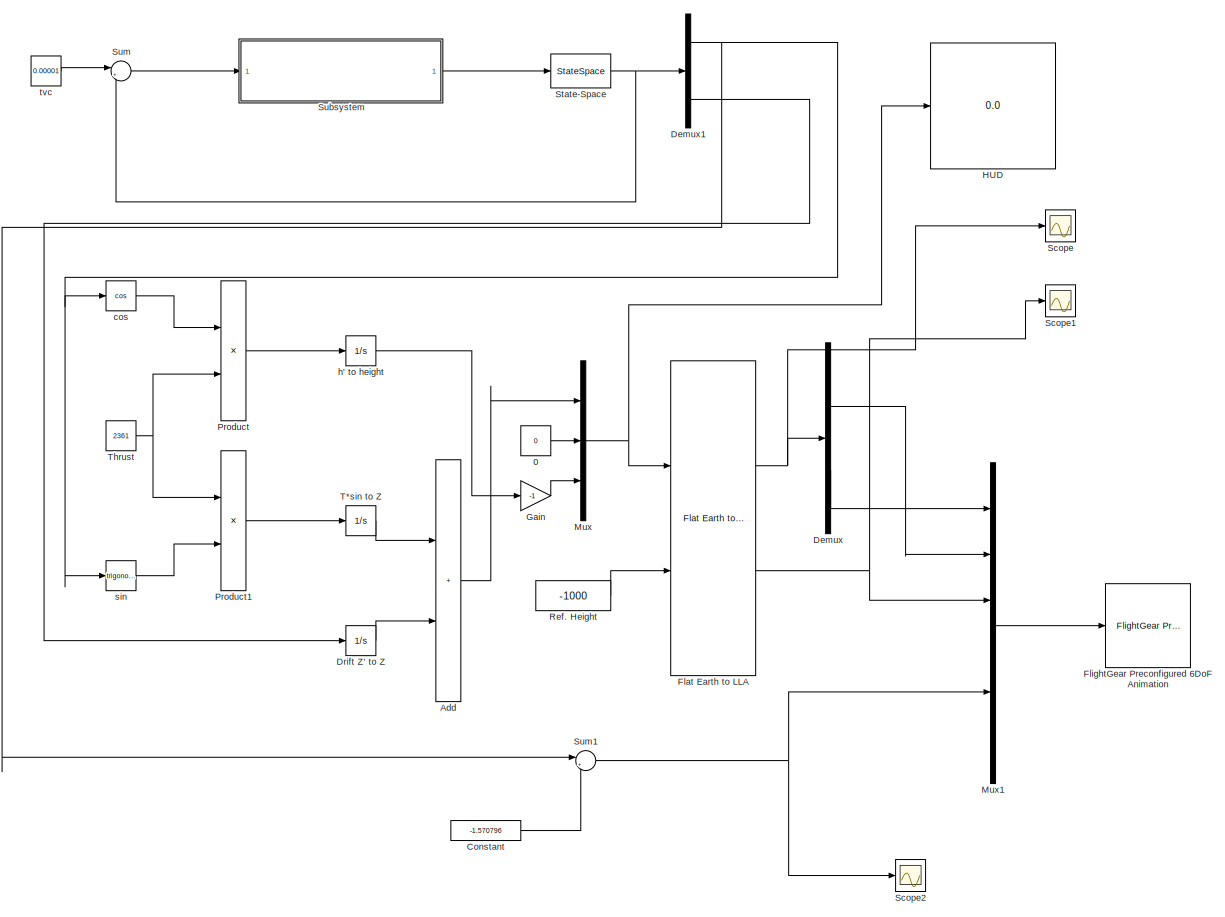
[diagram: root canvas - part 1/1, most of the canvas]
MODEL slx_27a8a4d96ae3
KIND model
CONFIG AbsTol = auto
CONFIG EnableMultiTasking = off
CONFIG FixedStep = auto
CONFIG MaxStep = auto
CONFIG MinStep = auto
CONFIG RelTol = 1e-3
CONFIG SampleTimeConstraint = Unconstrained
CONFIG SolverName = VariableStepAuto
CONFIG StartTime = 0.0
CONFIG StopTime = 100
BLOCK [Constant] 0
  Value = 0
BLOCK [Sum] Add
  IconShape = rectangular
  Ports = [2, 1]
BLOCK [Constant] Constant
  Value = -1.570796
BLOCK [Demux] Demux
  Outputs = 2
  Ports = [1, 2]
BLOCK [Demux] Demux1
  Outputs = 3
  Ports = [1, 3]
BLOCK [Integrator] Drift Z' to Z
  Ports = [1, 1]
BLOCK [Reference] Flat Earth to LLA  REF=aerolibtransform2/Flat Earth to LLA
  Ports = [2, 2]
  SourceBlock = aerolibtransform2/Flat Earth to LLA
  SourceProductBaseCode = AE
  SourceType = Flat Earth to LLA
BLOCK [Reference] FlightGear Preconfigured 6DoF Animation  REF=aerolibfltsims/FlightGear
Preconfigured
6DoF Animation
  Ports = [1]
  SourceBlock = aerolibfltsims/FlightGear\nPreconfigured\n6DoF Animation
  SourceProductBaseCode = AE
  SourceType = FlightGearQuick6DoFAnimation
BLOCK [Gain] Gain
  Gain = -1
BLOCK [Display] HUD
  Decimation = 1
  Ports = [1]
BLOCK [Mux] Mux
  DisplayOption = bar
  Inputs = 3
  Ports = [3, 1]
BLOCK [Mux] Mux1
  DisplayOption = bar
  Inputs = 6
  Ports = [6, 1]
BLOCK [Product] Product
  Ports = [2, 1]
BLOCK [Product] Product1
  Ports = [2, 1]
BLOCK [Constant] Ref. Height
  Value = -1000
BLOCK [Scope] Scope
  Floating = off
  NumInputPorts = 1
  Ports = [1]
  ScopeSpecificationString = Simulink.scopes.TimeScopeBlockCfg('CurrentConfiguration', extmgr.ConfigurationSet(extmgr.Configuration('Core','General UI',true),extmgr.Configuration('Core','Source UI',true),extmgr.Configuration('Sources','WiredSimulink',true),extmgr.Configuration('Visuals','Time Domain',true,'SerializedDisplays',{struct('MinYLimReal','-1.25','MaxYLimReal','11.25','YLabelReal','','MinYLimMag','0.00000','MaxYLimMa...<+1380ch>
BLOCK [Scope] Scope1
  Floating = off
  NumInputPorts = 1
  Ports = [1]
  ScopeSpecificationString = Simulink.scopes.TimeScopeBlockCfg('CurrentConfiguration', extmgr.ConfigurationSet(extmgr.Configuration('Core','General UI',true),extmgr.Configuration('Core','Source UI',true),extmgr.Configuration('Sources','WiredSimulink',true,'DataLoggingVariableName','ScopeData1'),extmgr.Configuration('Visuals','Time Domain',true,'SerializedDisplays',{struct('MinYLimReal','-28507.54574','MaxYLimReal','266567.911...<+1441ch>
BLOCK [Scope] Scope2
  Floating = off
  NumInputPorts = 1
  Ports = [1]
  ScopeSpecificationString = Simulink.scopes.TimeScopeBlockCfg('CurrentConfiguration', extmgr.ConfigurationSet(extmgr.Configuration('Core','General UI',true),extmgr.Configuration('Core','Source UI',true),extmgr.Configuration('Sources','WiredSimulink',true,'DataLoggingVariableName','ScopeData2'),extmgr.Configuration('Visuals','Time Domain',true,'SerializedDisplays',{struct('MinYLimReal','1.5467','MaxYLimReal','1.7957','YLabelR...<+1408ch>
BLOCK [StateSpace] State-Space
  A = A_m
  B = B_m
  C = C_m
  D = D_m
  InitialCondition = [0.2; 0; 0]
  Ports = [1, 1]
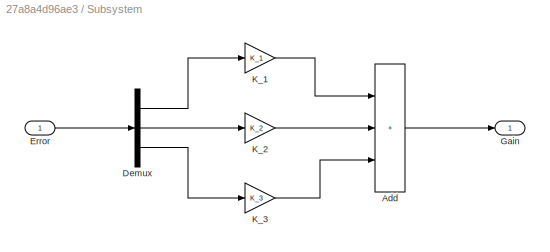
BLOCK [SubSystem] Subsystem
  Ports = [1, 1]
  RequestExecContextInheritance = off
BLOCK [Sum] Subsystem/Add
  IconShape = rectangular
  Inputs = +++
  Ports = [3, 1]
BLOCK [Demux] Subsystem/Demux
  Outputs = 3
  Ports = [1, 3]
BLOCK [Inport] Subsystem/Error
BLOCK [Outport] Subsystem/Gain
BLOCK [Gain] Subsystem/K_1
  Gain = K_1
BLOCK [Gain] Subsystem/K_2
  Gain = K_2
BLOCK [Gain] Subsystem/K_3
  Gain = K_3
BLOCK [Sum] Sum
  Inputs = |+-
  Ports = [2, 1]
BLOCK [Sum] Sum1
  Inputs = |+-
  Ports = [2, 1]
BLOCK [Integrator] T*sin to Z
  Ports = [1, 1]
BLOCK [Constant] Thrust
  Value = 2361
BLOCK [Trigonometry] cos 
  Operator = cos
  Ports = [1, 1]
BLOCK [Integrator] h' to height
  Ports = [1, 1]
BLOCK [Trigonometry] sin
  Ports = [1, 1]
BLOCK [Constant] tvc
  Value = 0.00001
LINE 0:1 -> Mux:2
LINE Add:1 -> Mux:1
LINE Constant:1 -> Sum1:2
NET Demux1:1 -> Sum1:1, cos :1, sin:1
LINE Demux1:3 -> Drift Z' to Z:1
LINE Demux:1 -> Mux1:2
LINE Demux:2 -> Mux1:1
LINE Drift Z' to Z:1 -> Add:2
NET Flat Earth to LLA:1 -> Demux:1, Scope:1
NET Flat Earth to LLA:2 -> Mux1:3, Scope1:1
LINE Gain:1 -> Mux:3
LINE Mux1:1 -> FlightGear Preconfigured 6DoF Animation:1
NET Mux:1 -> Flat Earth to LLA:1, HUD:1
LINE Product1:1 -> T*sin to Z:1
LINE Product:1 -> h' to height:1
LINE Ref. Height:1 -> Flat Earth to LLA:2
NET State-Space:1 -> Demux1:1, Sum:2
LINE Subsystem/Add:1 -> Subsystem/Gain:1
LINE Subsystem/Demux:1 -> Subsystem/K_1:1
LINE Subsystem/Demux:2 -> Subsystem/K_2:1
LINE Subsystem/Demux:3 -> Subsystem/K_3:1
LINE Subsystem/Error:1 -> Subsystem/Demux:1
LINE Subsystem/K_1:1 -> Subsystem/Add:1
LINE Subsystem/K_2:1 -> Subsystem/Add:2
LINE Subsystem/K_3:1 -> Subsystem/Add:3
LINE Subsystem:1 -> State-Space:1
NET Sum1:1 -> Mux1:5, Scope2:1
LINE Sum:1 -> Subsystem:1
LINE T*sin to Z:1 -> Add:1
NET Thrust:1 -> Product1:1, Product:2
LINE cos :1 -> Product:1
LINE h' to height:1 -> Gain:1
LINE sin:1 -> Product1:2
LINE tvc:1 -> Sum:1
note: NET lines group one-source signal fan-out (src -> all destinations, sorted); 1:1 wires keep LINE
